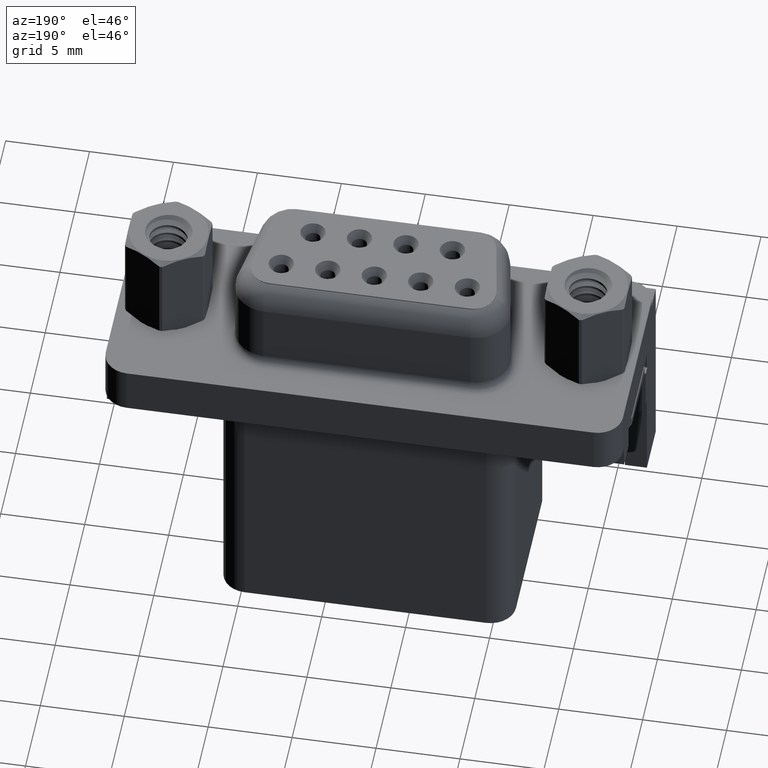
[diagram: clean part render]
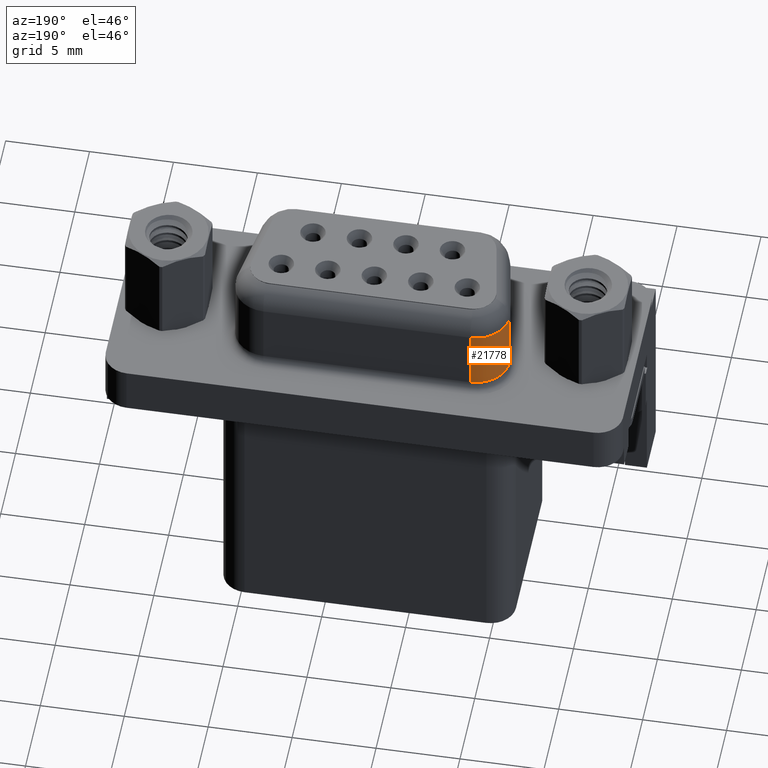
[diagram: same view with one face highlighted and labeled with its STEP entity id]
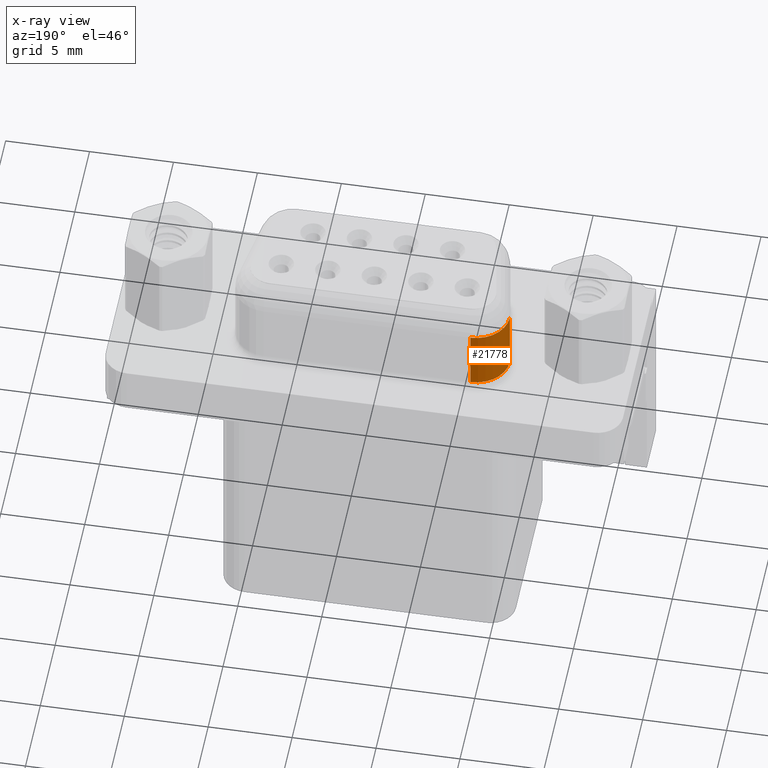
[diagram: x-ray of the same camera — body ghosted, the highlighted face saturated]
A machine part, auxiliary view. The second image highlights one B-rep face of the part: STEP entity #21778.
The next image is the same camera in x-ray: the body ghosted, the highlighted face saturated — about 0% of this face is hidden behind the body in this view.
In plain terms, the highlighted cylindrical surface (edge-blend (fillet) strip) has radius 2 mm, axis along (-0, -0, -1).
Its self-contained STEP definition (entity closure, byte-faithful):
#555 = VERTEX_POINT ( 'NONE', #7926 ) ;
#1316 = DIRECTION ( 'NONE',  ( 0.0000000000000000000, 0.0000000000000000000, 1.000000000000000000 ) ) ;
#3361 = CARTESIAN_POINT ( 'NONE',  ( 4.329999999999999200, 1.949999999999999700, 4.650000000000000400 ) ) ;
#3415 = AXIS2_PLACEMENT_3D ( 'NONE', #6347, #22895, #8720 ) ;
#3870 = EDGE_LOOP ( 'NONE', ( #16413, #21259, #11915, #8049 ) ) ;
#4012 = CARTESIAN_POINT ( 'NONE',  ( 6.330000000000000100, 1.949999999999999700, 6.400000000000000400 ) ) ;
#5101 = EDGE_CURVE ( 'NONE', #17362, #22363, #5918, .T. ) ;
#5834 = VECTOR ( 'NONE', #28222, 1000.000000000000000 ) ;
#5918 = CIRCLE ( 'NONE', #3415, 2.000000000000000900 ) ;
#6347 = CARTESIAN_POINT ( 'NONE',  ( 6.330000000000000100, 1.949999999999999700, 4.650000000000000400 ) ) ;
#6377 = DIRECTION ( 'NONE',  ( -0.0000000000000000000, -0.0000000000000000000, -1.000000000000000000 ) ) ;
#6578 = CARTESIAN_POINT ( 'NONE',  ( 4.329999999999999200, 1.949999999999999700, 6.400000000000000400 ) ) ;
#7092 = EDGE_CURVE ( 'NONE', #22363, #555, #18381, .T. ) ;
#7926 = CARTESIAN_POINT ( 'NONE',  ( 6.330000000000000100, 3.950000000000000200, 0.8999999999999998000 ) ) ;
#8049 = ORIENTED_EDGE ( 'NONE', *, *, #12774, .T. ) ;
#8720 = DIRECTION ( 'NONE',  ( -1.000000000000000000, 0.0000000000000000000, 0.0000000000000000000 ) ) ;
#9888 = AXIS2_PLACEMENT_3D ( 'NONE', #15442, #1316, #17812 ) ;
#11915 = ORIENTED_EDGE ( 'NONE', *, *, #7092, .T. ) ;
#12246 = CARTESIAN_POINT ( 'NONE',  ( 6.330000000000000100, 3.950000000000000200, 4.650000000000000400 ) ) ;
#12774 = EDGE_CURVE ( 'NONE', #555, #22156, #24317, .T. ) ;
#14116 = CARTESIAN_POINT ( 'NONE',  ( 6.330000000000000100, 3.950000000000000200, 6.400000000000000400 ) ) ;
#15442 = CARTESIAN_POINT ( 'NONE',  ( 6.330000000000000100, 1.949999999999999700, 0.8999999999999998000 ) ) ;
#16257 = CARTESIAN_POINT ( 'NONE',  ( 4.329999999999999200, 1.949999999999999700, 0.8999999999999998000 ) ) ;
#16413 = ORIENTED_EDGE ( 'NONE', *, *, #16589, .F. ) ;
#16589 = EDGE_CURVE ( 'NONE', #17362, #22156, #26517, .T. ) ;
#17362 = VERTEX_POINT ( 'NONE', #3361 ) ;
#17812 = DIRECTION ( 'NONE',  ( 1.000000000000000000, 0.0000000000000000000, 0.0000000000000000000 ) ) ;
#18381 = LINE ( 'NONE', #14116, #5834 ) ;
#21259 = ORIENTED_EDGE ( 'NONE', *, *, #5101, .T. ) ;
#21778 = ADVANCED_FACE ( 'NONE', ( #23019 ), #22287, .T. ) ;
#22156 = VERTEX_POINT ( 'NONE', #16257 ) ;
#22287 = CYLINDRICAL_SURFACE ( 'NONE', #26992, 2.000000000000000900 ) ;
#22363 = VERTEX_POINT ( 'NONE', #12246 ) ;
#22895 = DIRECTION ( 'NONE',  ( -0.0000000000000000000, -0.0000000000000000000, -1.000000000000000000 ) ) ;
#22926 = DIRECTION ( 'NONE',  ( -1.000000000000000000, 0.0000000000000000000, 0.0000000000000000000 ) ) ;
#23019 = FACE_OUTER_BOUND ( 'NONE', #3870, .T. ) ;
#24317 = CIRCLE ( 'NONE', #9888, 2.000000000000000900 ) ;
#25468 = DIRECTION ( 'NONE',  ( -0.0000000000000000000, -0.0000000000000000000, -1.000000000000000000 ) ) ;
#25774 = VECTOR ( 'NONE', #25468, 1000.000000000000000 ) ;
#26517 = LINE ( 'NONE', #6578, #25774 ) ;
#26992 = AXIS2_PLACEMENT_3D ( 'NONE', #4012, #6377, #22926 ) ;
#28222 = DIRECTION ( 'NONE',  ( -0.0000000000000000000, -0.0000000000000000000, -1.000000000000000000 ) ) ;